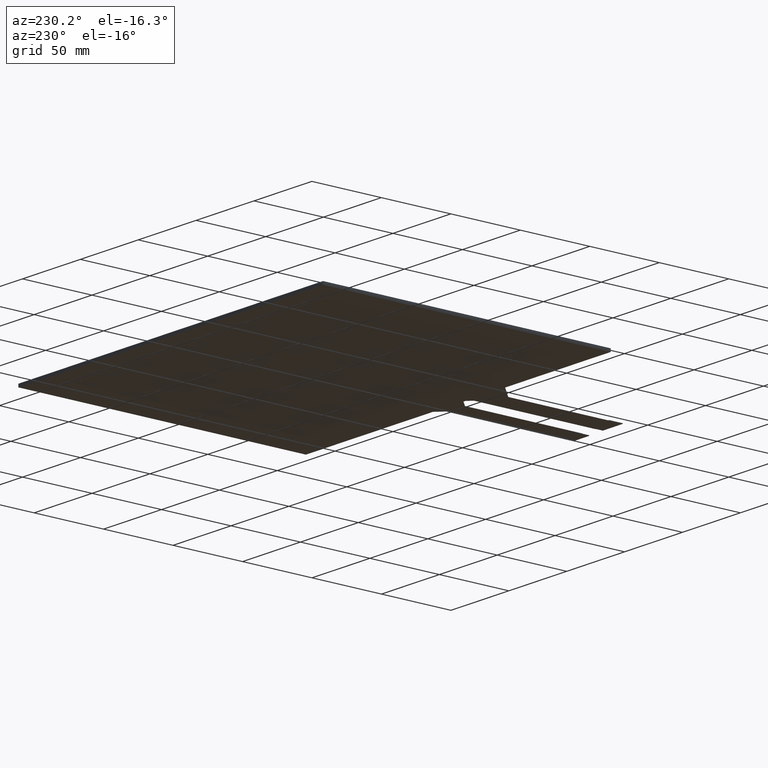
[diagram: clean part render]
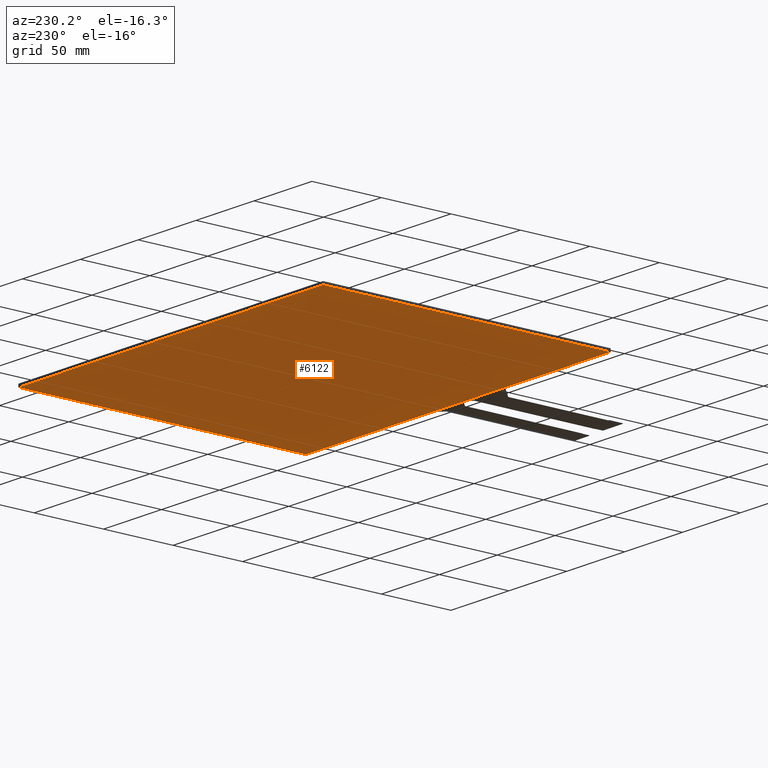
[diagram: same view with one face highlighted and labeled with its STEP entity id]
A machine part, auxiliary view. The second image highlights one B-rep face of the part: STEP entity #6122.
In plain terms, the highlighted planar face has unit normal (0, 0, -1).
Its self-contained STEP definition (entity closure, byte-faithful):
#352=PLANE('',#6460);
#646=FACE_OUTER_BOUND('',#944,.T.);
#944=EDGE_LOOP('',(#5813,#5814,#5815,#5816));
#1778=LINE('',#9660,#2618);
#1780=LINE('',#9664,#2620);
#1782=LINE('',#9668,#2622);
#1784=LINE('',#9671,#2624);
#2618=VECTOR('',#7922,10.);
#2620=VECTOR('',#7926,10.);
#2622=VECTOR('',#7930,10.);
#2624=VECTOR('',#7934,10.);
#3221=VERTEX_POINT('',#9657);
#3222=VERTEX_POINT('',#9659);
#3223=VERTEX_POINT('',#9663);
#3224=VERTEX_POINT('',#9667);
#4082=EDGE_CURVE('',#3222,#3221,#1778,.T.);
#4084=EDGE_CURVE('',#3223,#3222,#1780,.T.);
#4086=EDGE_CURVE('',#3224,#3223,#1782,.T.);
#4088=EDGE_CURVE('',#3221,#3224,#1784,.T.);
#5813=ORIENTED_EDGE('',*,*,#4088,.T.);
#5814=ORIENTED_EDGE('',*,*,#4086,.T.);
#5815=ORIENTED_EDGE('',*,*,#4084,.T.);
#5816=ORIENTED_EDGE('',*,*,#4082,.T.);
#6122=ADVANCED_FACE('',(#646),#352,.T.);
#6460=AXIS2_PLACEMENT_3D('',#9673,#7937,#7938);
#7922=DIRECTION('',(-1.7162868013529E-16,1.,0.));
#7926=DIRECTION('',(-1.,-6.74651287276966E-17,0.));
#7930=DIRECTION('',(1.7162868013529E-16,-1.,0.));
#7934=DIRECTION('',(1.,0.,0.));
#7937=DIRECTION('center_axis',(0.,0.,-1.));
#7938=DIRECTION('ref_axis',(-1.,0.,0.));
#9657=CARTESIAN_POINT('',(-131.65,101.65,-2.1));
#9659=CARTESIAN_POINT('',(-131.65,-105.35,-2.1));
#9660=CARTESIAN_POINT('',(-131.65,101.65,-2.1));
#9663=CARTESIAN_POINT('',(131.65,-105.35,-2.1));
#9664=CARTESIAN_POINT('',(-131.65,-105.35,-2.1));
#9667=CARTESIAN_POINT('',(131.65,101.65,-2.1));
#9668=CARTESIAN_POINT('',(131.65,-105.35,-2.1));
#9671=CARTESIAN_POINT('',(131.65,101.65,-2.1));
#9673=CARTESIAN_POINT('Origin',(-1.77635683940025E-14,-1.84999999999999,
-2.1));